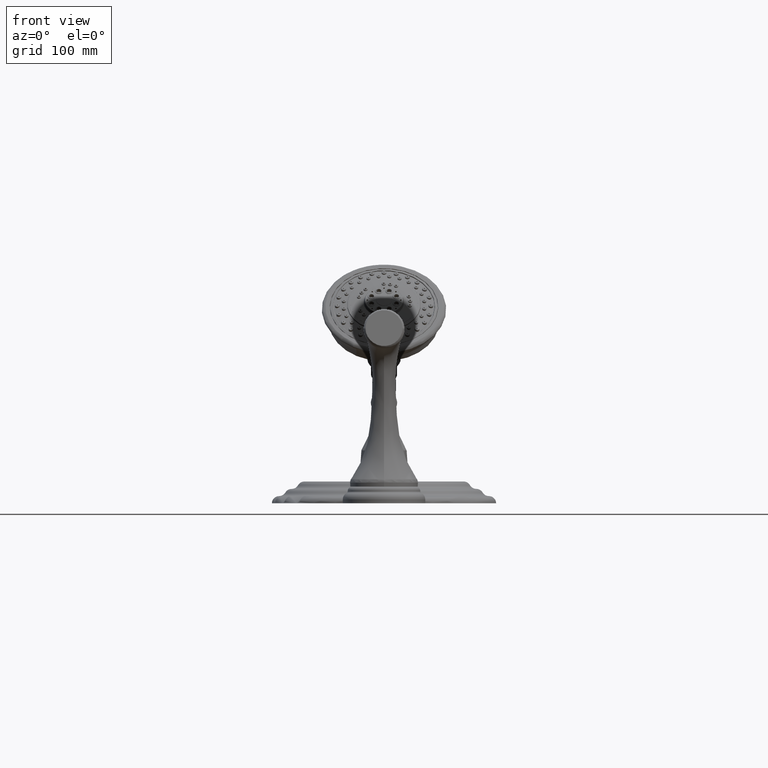
[diagram: clean part render]
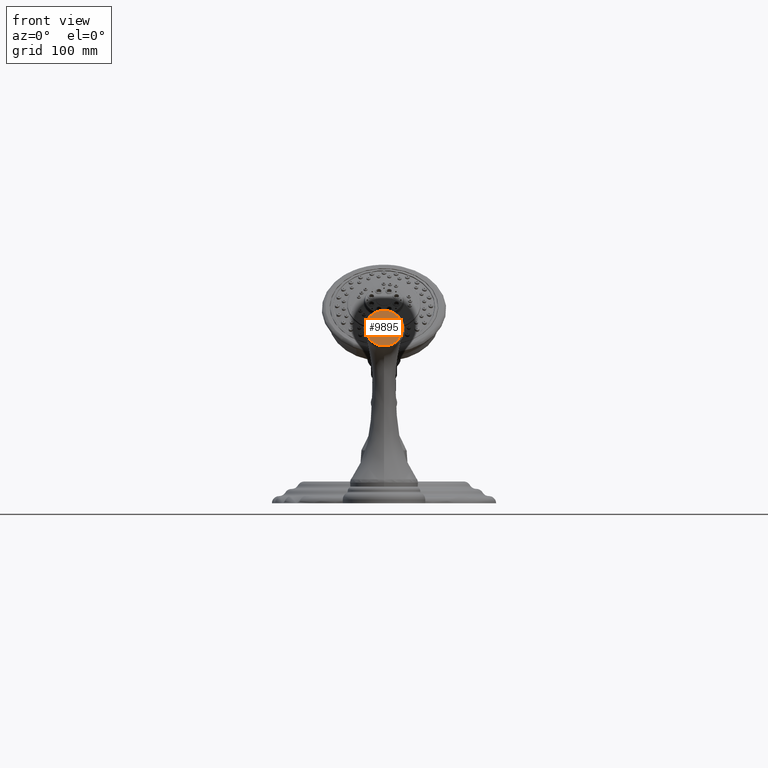
[diagram: same view with one face highlighted and labeled with its STEP entity id]
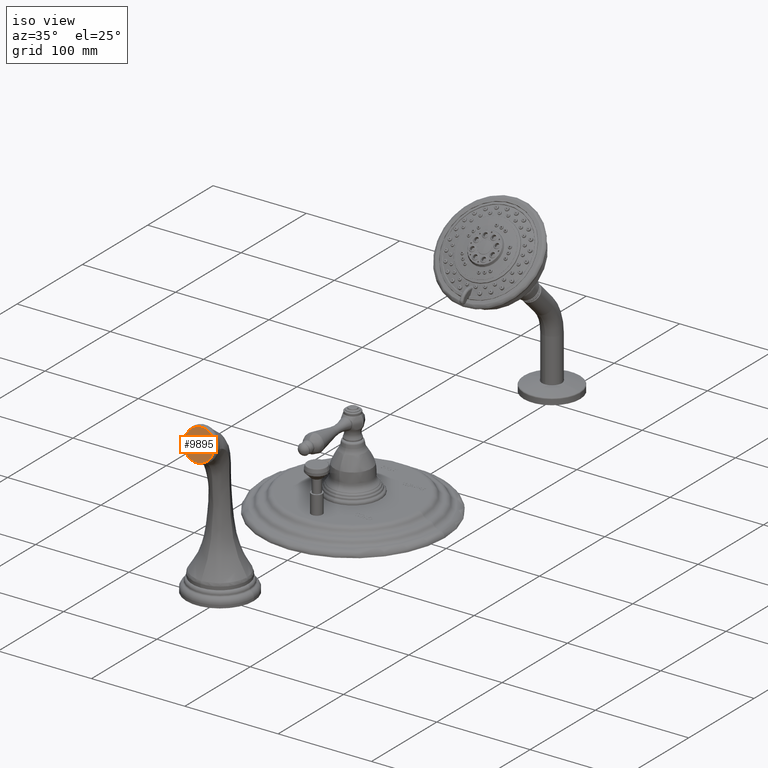
[diagram: same view with one face highlighted and labeled with its STEP entity id]
A machine part, front view. The second image highlights one B-rep face of the part: STEP entity #9895.
A second angle (iso view) of the same face is appended — the face is thin or edge-on in the first view.
In plain terms, the highlighted planar face has unit normal (0, -0.9659, 0.2588).
Its self-contained STEP definition (entity closure, byte-faithful):
#8518=CARTESIAN_POINT('',(0.E0,-9.261938524379E0,6.054849931759E0));
#8519=DIRECTION('',(0.E0,9.659258262891E-1,-2.588190451025E-1));
#8520=DIRECTION('',(1.E0,0.E0,0.E0));
#8521=AXIS2_PLACEMENT_3D('',#8518,#8519,#8520);
#8533=CARTESIAN_POINT('',(0.E0,-9.261938524379E0,6.054849931759E0));
#8534=DIRECTION('',(0.E0,-9.659258262891E-1,2.588190451025E-1));
#8535=DIRECTION('',(1.E0,0.E0,0.E0));
#8536=AXIS2_PLACEMENT_3D('',#8533,#8534,#8535);
#8797=CARTESIAN_POINT('',(6.39E-1,-9.261938524379E0,6.054849931759E0));
#8798=CARTESIAN_POINT('',(-6.39E-1,-9.261938524379E0,6.054849931759E0));
#8799=VERTEX_POINT('',#8797);
#8800=VERTEX_POINT('',#8798);
#9886=CARTESIAN_POINT('',(0.E0,-9.261938524379E0,6.054849931759E0));
#9887=DIRECTION('',(0.E0,-9.659258262891E-1,2.588190451025E-1));
#9888=DIRECTION('',(0.E0,2.588190451025E-1,9.659258262891E-1));
#9889=AXIS2_PLACEMENT_3D('',#9886,#9887,#9888);
#9890=PLANE('',#9889);
#9891=ORIENTED_EDGE('',*,*,#9866,.T.);
#9892=ORIENTED_EDGE('',*,*,#9880,.F.);
#9893=EDGE_LOOP('',(#9891,#9892));
#9894=FACE_OUTER_BOUND('',#9893,.F.);
#9895=ADVANCED_FACE('',(#9894),#9890,.T.);
#8522=CIRCLE('',#8521,6.39E-1);
#8537=CIRCLE('',#8536,6.39E-1);
#9866=EDGE_CURVE('',#8799,#8800,#8522,.T.);
#9880=EDGE_CURVE('',#8799,#8800,#8537,.T.);